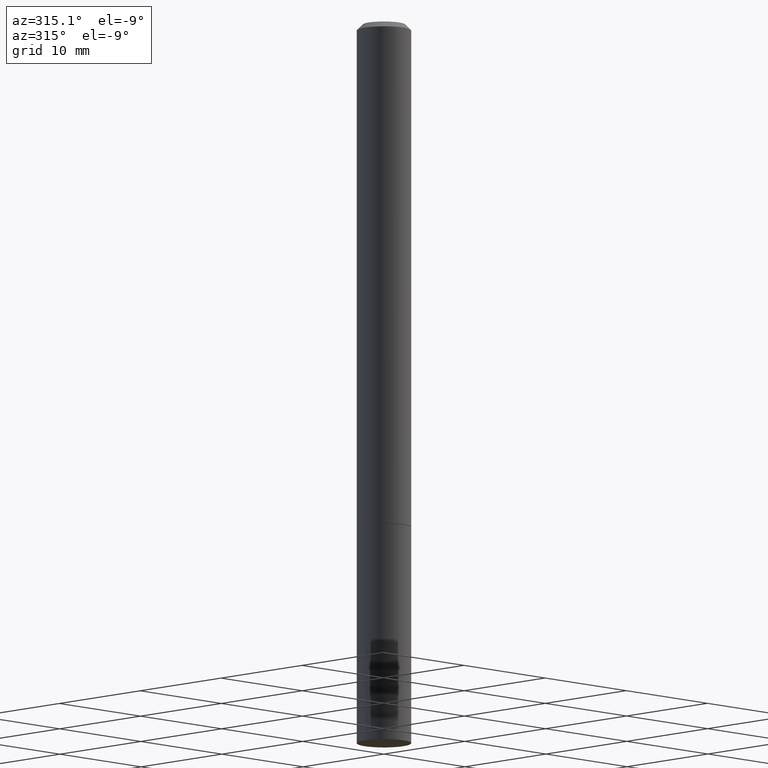
[diagram: clean part render]
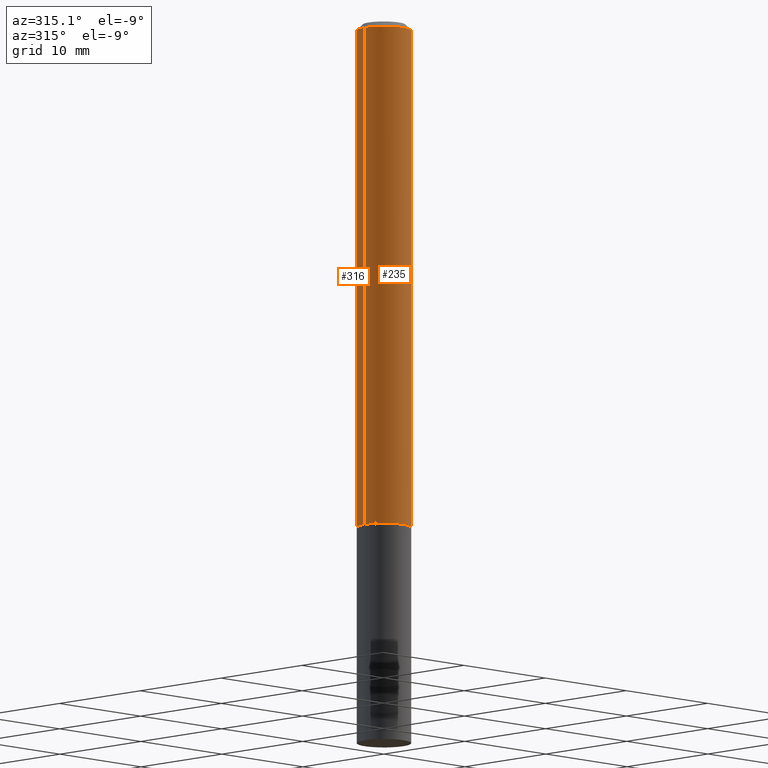
[diagram: same view with one multi-face feature highlighted, each face labeled with its STEP entity id]
A machine part, auxiliary view. The highlighted faces form ONE feature: a constant-radius fillet chain: 2 tangent blend faces with common blend radius 2.3812 mm. The faces share edges in the B-rep.
Their STEP definitions:
[1] entity #316 (Cylinder):
#8 = VERTEX_POINT ( 'NONE', #284 ) ;
#17 = AXIS2_PLACEMENT_3D ( 'NONE', #154, #387, #354 ) ;
#22 = CARTESIAN_POINT ( 'NONE',  ( 4.277124942017804562E-29, -6.106600861636661664E-15, -1.749000000000000110 ) ) ;
#59 = DIRECTION ( 'NONE',  ( 1.000000000000000000, -6.982962677686265133E-15, 4.876176775795935793E-29 ) ) ;
#66 = ORIENTED_EDGE ( 'NONE', *, *, #179, .T. ) ;
#88 = DIRECTION ( 'NONE',  ( -2.445468806185136877E-29, 3.491481338843145188E-15, 1.000000000000000000 ) ) ;
#102 = ORIENTED_EDGE ( 'NONE', *, *, #344, .T. ) ;
#144 = CIRCLE ( 'NONE', #17, 0.09374999999999975020 ) ;
#153 = DIRECTION ( 'NONE',  ( -2.445468806185136597E-29, 3.491481338843145583E-15, 1.000000000000000000 ) ) ;
#154 = CARTESIAN_POINT ( 'NONE',  ( 4.890937612370278413E-31, -6.982962677686297772E-17, -0.02000000000000002123 ) ) ;
#157 = LINE ( 'NONE', #303, #239 ) ;
#158 = CYLINDRICAL_SURFACE ( 'NONE', #166, 0.09374999999999988898 ) ;
#160 = EDGE_LOOP ( 'NONE', ( #66, #102, #365, #221 ) ) ;
#166 = AXIS2_PLACEMENT_3D ( 'NONE', #213, #359, #59 ) ;
#179 = EDGE_CURVE ( 'NONE', #8, #363, #326, .T. ) ;
#189 = CARTESIAN_POINT ( 'NONE',  ( 0.09374999999999988898, -6.546527510330866166E-16, 4.571415727308684201E-30 ) ) ;
#213 = CARTESIAN_POINT ( 'NONE',  ( 0.000000000000000000, 0.000000000000000000, 0.000000000000000000 ) ) ;
#219 = VERTEX_POINT ( 'NONE', #292 ) ;
#221 = ORIENTED_EDGE ( 'NONE', *, *, #254, .F. ) ;
#238 = EDGE_CURVE ( 'NONE', #219, #358, #144, .T. ) ;
#239 = VECTOR ( 'NONE', #273, 39.37007874015748143 ) ;
#248 = FACE_OUTER_BOUND ( 'NONE', #160, .T. ) ;
#254 = EDGE_CURVE ( 'NONE', #8, #219, #385, .T. ) ;
#267 = DIRECTION ( 'NONE',  ( 1.000000000000000000, -6.982962677686261189E-15, 0.000000000000000000 ) ) ;
#272 = CARTESIAN_POINT ( 'NONE',  ( -0.09375000000000001388, -2.422081429431664218E-15, -1.749000000000000110 ) ) ;
#273 = DIRECTION ( 'NONE',  ( -2.445468806185136877E-29, 3.491481338843145188E-15, 1.000000000000000000 ) ) ;
#278 = CARTESIAN_POINT ( 'NONE',  ( -0.09374999999999975020, 5.848231242562228254E-16, -0.02000000000000002123 ) ) ;
#284 = CARTESIAN_POINT ( 'NONE',  ( 0.09375000000000001388, -6.761253612669749168E-15, -1.749000000000000110 ) ) ;
#292 = CARTESIAN_POINT ( 'NONE',  ( 0.09374999999999975020, -7.130013140679423114E-16, -0.02000000000000002123 ) ) ;
#303 = CARTESIAN_POINT ( 'NONE',  ( -0.09374999999999988898, 6.661338147750931354E-16, -4.611501647113968390E-30 ) ) ;
#316 = ADVANCED_FACE ( 'NONE', ( #248 ), #158, .T. ) ;
#326 = CIRCLE ( 'NONE', #368, 0.09375000000000001388 ) ;
#344 = EDGE_CURVE ( 'NONE', #363, #358, #157, .T. ) ;
#354 = DIRECTION ( 'NONE',  ( 1.000000000000000000, -6.982962677686267499E-15, 0.000000000000000000 ) ) ;
#358 = VERTEX_POINT ( 'NONE', #278 ) ;
#359 = DIRECTION ( 'NONE',  ( -2.445468806185136597E-29, 3.491481338843145583E-15, 1.000000000000000000 ) ) ;
#363 = VERTEX_POINT ( 'NONE', #272 ) ;
#365 = ORIENTED_EDGE ( 'NONE', *, *, #238, .F. ) ;
#368 = AXIS2_PLACEMENT_3D ( 'NONE', #22, #153, #267 ) ;
#384 = VECTOR ( 'NONE', #88, 39.37007874015748143 ) ;
#385 = LINE ( 'NONE', #189, #384 ) ;
#387 = DIRECTION ( 'NONE',  ( -2.445468806185136597E-29, 3.491481338843145583E-15, 1.000000000000000000 ) ) ;
[2] entity #235 (Cylinder):
#8 = VERTEX_POINT ( 'NONE', #284 ) ;
#11 = ORIENTED_EDGE ( 'NONE', *, *, #185, .T. ) ;
#19 = FACE_OUTER_BOUND ( 'NONE', #253, .T. ) ;
#79 = AXIS2_PLACEMENT_3D ( 'NONE', #382, #118, #82 ) ;
#82 = DIRECTION ( 'NONE',  ( 1.000000000000000000, -6.982962677686267499E-15, 0.000000000000000000 ) ) ;
#88 = DIRECTION ( 'NONE',  ( -2.445468806185136877E-29, 3.491481338843145188E-15, 1.000000000000000000 ) ) ;
#93 = ORIENTED_EDGE ( 'NONE', *, *, #120, .F. ) ;
#116 = CIRCLE ( 'NONE', #79, 0.09374999999999975020 ) ;
#117 = AXIS2_PLACEMENT_3D ( 'NONE', #191, #299, #215 ) ;
#118 = DIRECTION ( 'NONE',  ( -2.445468806185136597E-29, 3.491481338843145583E-15, 1.000000000000000000 ) ) ;
#120 = EDGE_CURVE ( 'NONE', #358, #219, #116, .T. ) ;
#122 = CARTESIAN_POINT ( 'NONE',  ( 4.277124942017804562E-29, -6.106600861636661664E-15, -1.749000000000000110 ) ) ;
#157 = LINE ( 'NONE', #303, #239 ) ;
#185 = EDGE_CURVE ( 'NONE', #363, #8, #308, .T. ) ;
#189 = CARTESIAN_POINT ( 'NONE',  ( 0.09374999999999988898, -6.546527510330866166E-16, 4.571415727308684201E-30 ) ) ;
#191 = CARTESIAN_POINT ( 'NONE',  ( 0.000000000000000000, 0.000000000000000000, 0.000000000000000000 ) ) ;
#215 = DIRECTION ( 'NONE',  ( 1.000000000000000000, -6.982962677686265133E-15, 4.876176775795935793E-29 ) ) ;
#219 = VERTEX_POINT ( 'NONE', #292 ) ;
#226 = ORIENTED_EDGE ( 'NONE', *, *, #254, .T. ) ;
#235 = ADVANCED_FACE ( 'NONE', ( #19 ), #247, .T. ) ;
#239 = VECTOR ( 'NONE', #273, 39.37007874015748143 ) ;
#247 = CYLINDRICAL_SURFACE ( 'NONE', #117, 0.09374999999999988898 ) ;
#253 = EDGE_LOOP ( 'NONE', ( #388, #11, #226, #93 ) ) ;
#254 = EDGE_CURVE ( 'NONE', #8, #219, #385, .T. ) ;
#266 = DIRECTION ( 'NONE',  ( -2.445468806185136597E-29, 3.491481338843145583E-15, 1.000000000000000000 ) ) ;
#271 = AXIS2_PLACEMENT_3D ( 'NONE', #122, #266, #345 ) ;
#272 = CARTESIAN_POINT ( 'NONE',  ( -0.09375000000000001388, -2.422081429431664218E-15, -1.749000000000000110 ) ) ;
#273 = DIRECTION ( 'NONE',  ( -2.445468806185136877E-29, 3.491481338843145188E-15, 1.000000000000000000 ) ) ;
#278 = CARTESIAN_POINT ( 'NONE',  ( -0.09374999999999975020, 5.848231242562228254E-16, -0.02000000000000002123 ) ) ;
#284 = CARTESIAN_POINT ( 'NONE',  ( 0.09375000000000001388, -6.761253612669749168E-15, -1.749000000000000110 ) ) ;
#292 = CARTESIAN_POINT ( 'NONE',  ( 0.09374999999999975020, -7.130013140679423114E-16, -0.02000000000000002123 ) ) ;
#299 = DIRECTION ( 'NONE',  ( -2.445468806185136597E-29, 3.491481338843145583E-15, 1.000000000000000000 ) ) ;
#303 = CARTESIAN_POINT ( 'NONE',  ( -0.09374999999999988898, 6.661338147750931354E-16, -4.611501647113968390E-30 ) ) ;
#308 = CIRCLE ( 'NONE', #271, 0.09375000000000001388 ) ;
#344 = EDGE_CURVE ( 'NONE', #363, #358, #157, .T. ) ;
#345 = DIRECTION ( 'NONE',  ( 1.000000000000000000, -6.982962677686261189E-15, 0.000000000000000000 ) ) ;
#358 = VERTEX_POINT ( 'NONE', #278 ) ;
#363 = VERTEX_POINT ( 'NONE', #272 ) ;
#382 = CARTESIAN_POINT ( 'NONE',  ( 4.890937612370278413E-31, -6.982962677686297772E-17, -0.02000000000000002123 ) ) ;
#384 = VECTOR ( 'NONE', #88, 39.37007874015748143 ) ;
#385 = LINE ( 'NONE', #189, #384 ) ;
#388 = ORIENTED_EDGE ( 'NONE', *, *, #344, .F. ) ;